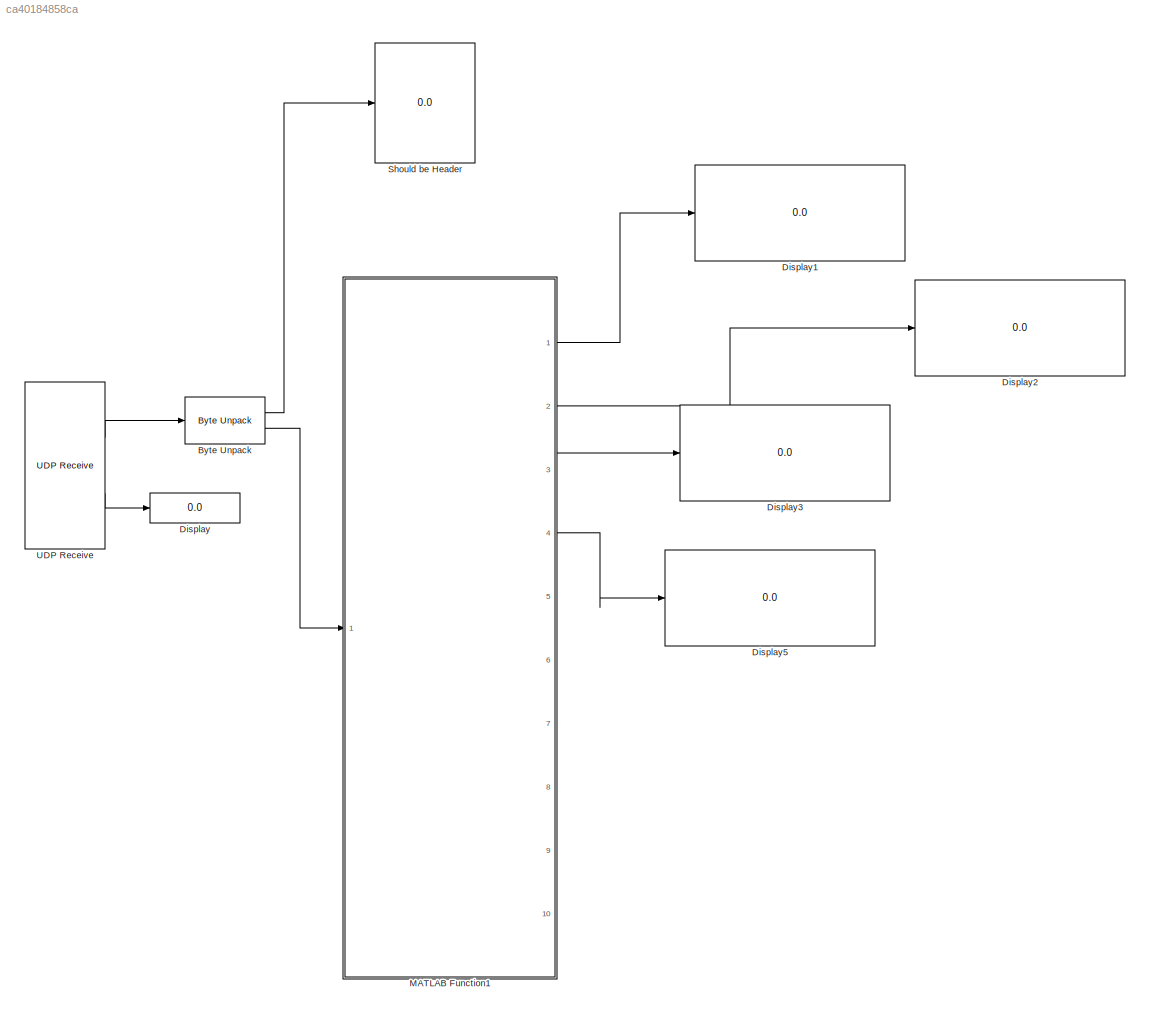
MODEL slx_ca40184858ca
KIND model
CONFIG AbsTol = auto
CONFIG EnableMultiTasking = off
CONFIG FixedStep = auto
CONFIG MaxStep = auto
CONFIG MinStep = auto
CONFIG RelTol = 1e-3
CONFIG SampleTimeConstraint = Unconstrained
CONFIG Solver = VariableStepAuto
CONFIG SolverName = VariableStepAuto
CONFIG StartTime = 0.0
CONFIG StopTime = inf
BLOCK [Reference] Byte Unpack  REF=etargetslib/Byte Unpack
  Ports = [1, 2]
  SourceBlock = etargetslib/Byte Unpack
  SourceProductBaseCode = ME
  SourceType = Byte Unpack
BLOCK [Display] Display
  Decimation = 1
  Ports = [1]
BLOCK [Display] Display1
  Decimation = 1
  Ports = [1]
BLOCK [Display] Display2
  Decimation = 1
  Ports = [1]
BLOCK [Display] Display3
  Decimation = 1
  Ports = [1]
BLOCK [Display] Display5
  Decimation = 1
  Ports = [1]
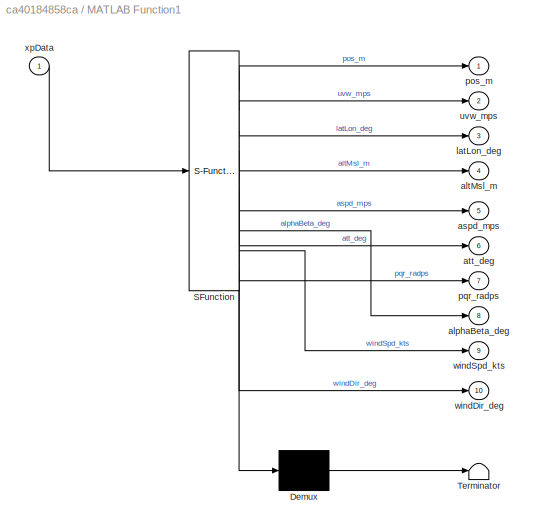
BLOCK [SubSystem] MATLAB Function1
  ErrorFcn = Stateflow.Translate.translate
  PermitHierarchicalResolution = ExplicitOnly
  Ports = [1, 10]
  RequestExecContextInheritance = off
  SFBlockType = MATLAB Function
  TreatAsAtomicUnit = on
BLOCK [Demux] MATLAB Function1/ Demux 
  Outputs = 1
  Ports = [1, 1]
BLOCK [S-Function] MATLAB Function1/ SFunction 
  EnableBusSupport = on
  FunctionName = sf_sfun
  PortCounts = [1 11]
  Ports = [1, 11]
  SFcnIsStateOwnerBlock = off
  SFunctionDeploymentMode = off
  Tag = Stateflow S-Function 5
BLOCK [Terminator] MATLAB Function1/ Terminator 
BLOCK [Outport] MATLAB Function1/alphaBeta_deg
  Port = 8
BLOCK [Outport] MATLAB Function1/altMsl_m
  Port = 4
BLOCK [Outport] MATLAB Function1/aspd_mps
  Port = 5
BLOCK [Outport] MATLAB Function1/att_deg
  Port = 6
BLOCK [Outport] MATLAB Function1/latLon_deg
  Port = 3
BLOCK [Outport] MATLAB Function1/pos_m
BLOCK [Outport] MATLAB Function1/pqr_radps
  Port = 7
BLOCK [Outport] MATLAB Function1/uvw_mps
  Port = 2
BLOCK [Outport] MATLAB Function1/windDir_deg
  Port = 10
BLOCK [Outport] MATLAB Function1/windSpd_kts
  Port = 9
BLOCK [Inport] MATLAB Function1/xpData
BLOCK [Display] Should be Header
  Decimation = 1
  Ports = [1]
BLOCK [Reference] UDP Receive  REF=dspnetwork/UDP Receive
  Ports = [0, 2]
  SourceBlock = dspnetwork/UDP Receive
  SourceProductBaseCode = SL
  SourceType = UDP Receive
LINE Byte Unpack:1 -> Should be Header:1
LINE Byte Unpack:2 -> MATLAB Function1:1
LINE MATLAB Function1:1 -> Display1:1
LINE MATLAB Function1:2 -> Display2:1
LINE MATLAB Function1:3 -> Display3:1
LINE MATLAB Function1:4 -> Display5:1
LINE UDP Receive:1 -> Byte Unpack:1
LINE UDP Receive:2 -> Display:1
CHART MATLAB Function1 states=1 transitions=1
  STATE_LABEL 'eML_blk_kernel()'
  STATE_LABEL 'SCRIPT:\nfunction [pos_m, uvw_mps, latLon_deg, altMsl_m, aspd_mps, att_deg, pqr_radps, alphaBeta_deg, windSpd_kts, windDir_deg] = fcn(xpData)\n\n% The order of the data output depends on the order at which XP outputs\nft2m = 0.3048;\nftlb2Nm = 1.36;\nkts2mps = 0.514444;\n\nspeedsData          = xpData(:, 1);\nmachData            = xpData(:, 2);\nweatherData         = xpData(:, 3);\natmosData           = xpDa...<+2204ch>'
CHART  states=0 transitions=0
